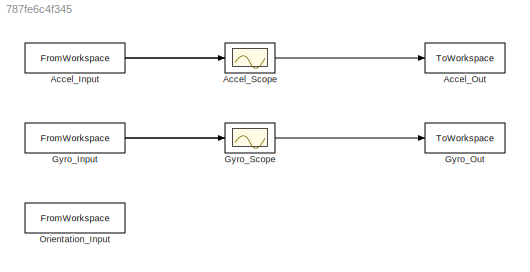
MODEL slx_787fe6c4f345
KIND model
CONFIG AbsTol = auto
CONFIG EnableMultiTasking = off
CONFIG FixedStep = 0.01
CONFIG MaxStep = auto
CONFIG MinStep = auto
CONFIG RelTol = 1e-3
CONFIG SampleTimeConstraint = Unconstrained
CONFIG SolverName = ode4
CONFIG StartTime = 0.0
CONFIG StopTime = 10
BLOCK [FromWorkspace] Accel_Input
  VariableName = Acceleration
BLOCK [ToWorkspace] Accel_Out
  FixptAsFi = on
  MaxDataPoints = inf
  SampleTime = -1
  SaveFormat = Timeseries
  VariableName = accel_measured
BLOCK [Scope] Accel_Scope
  Floating = off
  GraphicalSettings = {"GraphicalSettings":{"LegacySettings":true,"Style":{"Style":{"PlotType":"Auto"}}}}
  NumInputPorts = 1
  WasSavedAsWebScope = on
BLOCK [FromWorkspace] Gyro_Input
  VariableName = AngularVelocity
BLOCK [ToWorkspace] Gyro_Out
  FixptAsFi = on
  MaxDataPoints = inf
  SampleTime = -1
  SaveFormat = Timeseries
  VariableName = gyro_measured
BLOCK [Scope] Gyro_Scope
  Floating = off
  GraphicalSettings = {"GraphicalSettings":{"LegacySettings":true,"Style":{"Style":{"PlotType":"Auto"}}}}
  NumInputPorts = 1
  WasSavedAsWebScope = on
BLOCK [FromWorkspace] Orientation_Input
  VariableName = Orientation
NET Accel_Input:1 -> Accel_Out:1, Accel_Scope:1
NET Gyro_Input:1 -> Gyro_Out:1, Gyro_Scope:1
note: NET lines group one-source signal fan-out (src -> all destinations, sorted); 1:1 wires keep LINE
